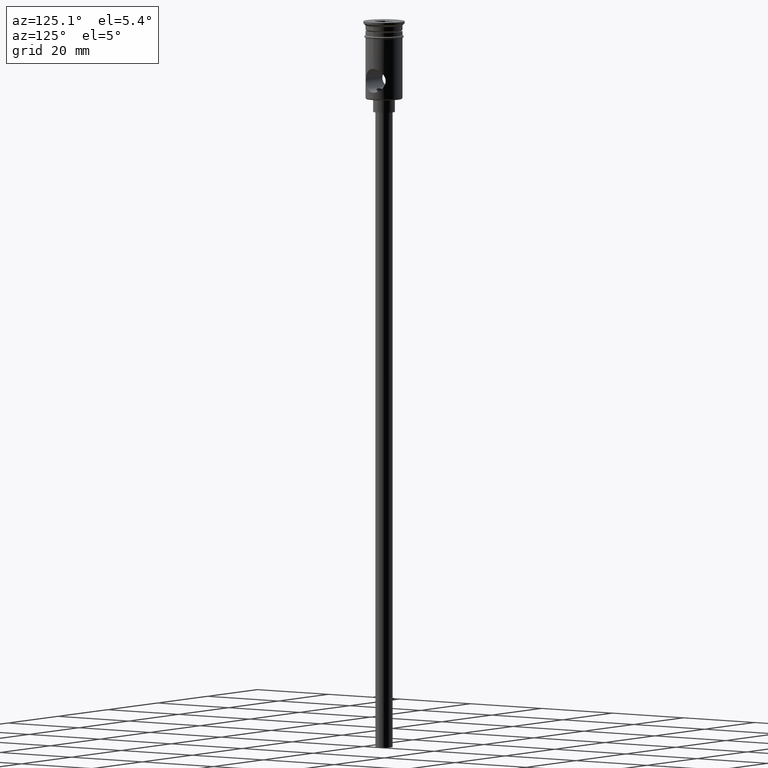
[diagram: clean part render]
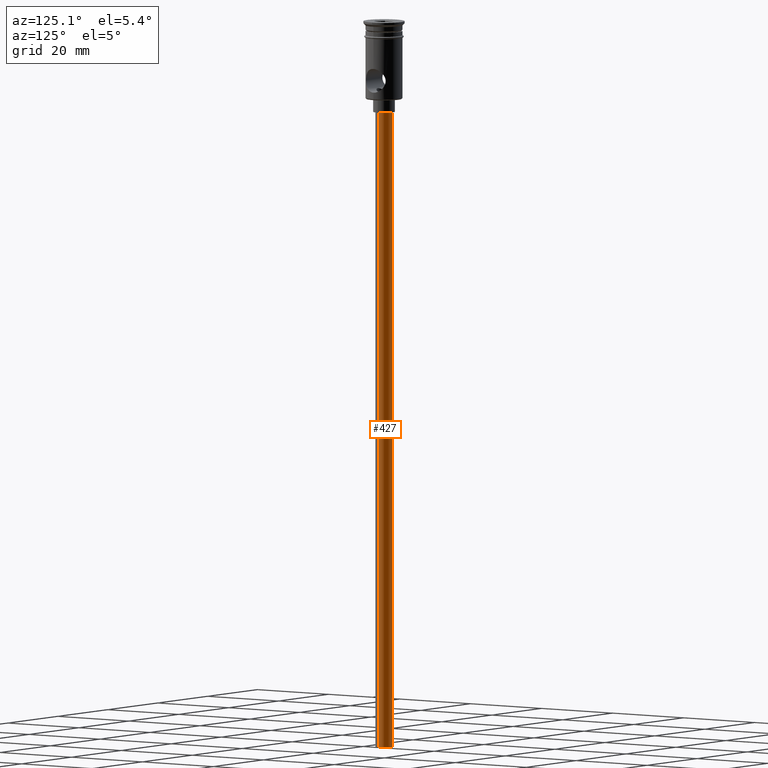
[diagram: same view with one face highlighted and labeled with its STEP entity id]
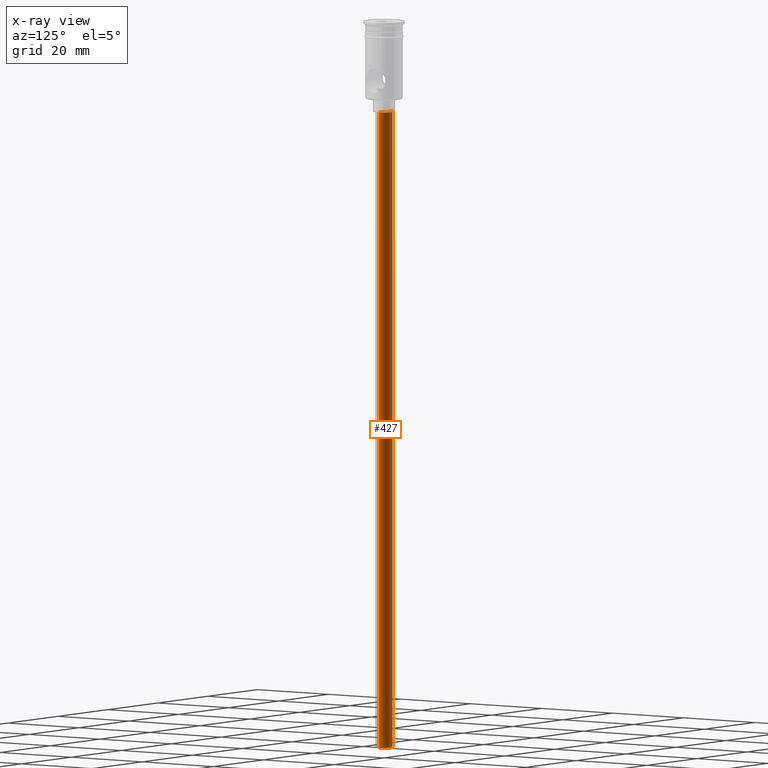
[diagram: x-ray of the same camera — body ghosted, the highlighted face saturated]
A machine part, auxiliary view. The second image highlights one B-rep face of the part: STEP entity #427.
The next image is the same camera in x-ray: the body ghosted, the highlighted face saturated — about 0% of this face is hidden behind the body in this view.
In plain terms, the highlighted cylindrical surface (edge-blend (fillet) strip) has radius 2 mm, axis along (-0, -0, 1).
Its self-contained STEP definition (entity closure, byte-faithful):
#16 = LINE ( 'NONE', #695, #140 ) ;
#68 = DIRECTION ( 'NONE',  ( 0.000000000000000000, 0.000000000000000000, -1.000000000000000000 ) ) ;
#109 = CIRCLE ( 'NONE', #688, 2.000000000000000000 ) ;
#110 = LINE ( 'NONE', #991, #678 ) ;
#140 = VECTOR ( 'NONE', #907, 1000.000000000000000 ) ;
#164 = DIRECTION ( 'NONE',  ( 1.000000000000000000, 0.000000000000000000, 0.000000000000000000 ) ) ;
#228 = DIRECTION ( 'NONE',  ( -0.000000000000000000, -0.000000000000000000, 1.000000000000000000 ) ) ;
#247 = FACE_OUTER_BOUND ( 'NONE', #398, .T. ) ;
#270 = DIRECTION ( 'NONE',  ( -0.000000000000000000, -0.000000000000000000, 1.000000000000000000 ) ) ;
#295 = ORIENTED_EDGE ( 'NONE', *, *, #610, .T. ) ;
#372 = CYLINDRICAL_SURFACE ( 'NONE', #1006, 2.000000000000000000 ) ;
#398 = EDGE_LOOP ( 'NONE', ( #804, #295, #778, #1431 ) ) ;
#427 = ADVANCED_FACE ( 'NONE', ( #247 ), #372, .T. ) ;
#464 = EDGE_CURVE ( 'NONE', #1121, #605, #492, .T. ) ;
#492 = CIRCLE ( 'NONE', #1297, 2.000000000000000000 ) ;
#501 = DIRECTION ( 'NONE',  ( -1.000000000000000000, 0.000000000000000000, 0.000000000000000000 ) ) ;
#603 = CARTESIAN_POINT ( 'NONE',  ( -2.000000000000000000, 2.449293598294706414E-16, -20.99999999999999645 ) ) ;
#605 = VERTEX_POINT ( 'NONE', #1220 ) ;
#610 = EDGE_CURVE ( 'NONE', #1121, #1243, #110, .T. ) ;
#629 = CARTESIAN_POINT ( 'NONE',  ( 0.000000000000000000, 0.000000000000000000, -20.99999999999999645 ) ) ;
#678 = VECTOR ( 'NONE', #228, 1000.000000000000000 ) ;
#688 = AXIS2_PLACEMENT_3D ( 'NONE', #629, #1054, #501 ) ;
#695 = CARTESIAN_POINT ( 'NONE',  ( 2.000000000000000000, 0.000000000000000000, -167.9999999999999716 ) ) ;
#709 = CARTESIAN_POINT ( 'NONE',  ( 2.000000000000000000, 0.000000000000000000, -20.99999999999999645 ) ) ;
#757 = CARTESIAN_POINT ( 'NONE',  ( -2.000000000000000000, 2.449293598294706414E-16, -167.9999999999999716 ) ) ;
#764 = VERTEX_POINT ( 'NONE', #709 ) ;
#771 = EDGE_CURVE ( 'NONE', #605, #764, #16, .T. ) ;
#778 = ORIENTED_EDGE ( 'NONE', *, *, #967, .T. ) ;
#802 = CARTESIAN_POINT ( 'NONE',  ( 0.000000000000000000, 0.000000000000000000, -167.9999999999999716 ) ) ;
#804 = ORIENTED_EDGE ( 'NONE', *, *, #464, .F. ) ;
#859 = DIRECTION ( 'NONE',  ( -1.000000000000000000, 0.000000000000000000, 0.000000000000000000 ) ) ;
#907 = DIRECTION ( 'NONE',  ( -0.000000000000000000, -0.000000000000000000, 1.000000000000000000 ) ) ;
#964 = CARTESIAN_POINT ( 'NONE',  ( 0.000000000000000000, 0.000000000000000000, -167.9999999999999716 ) ) ;
#967 = EDGE_CURVE ( 'NONE', #1243, #764, #109, .T. ) ;
#991 = CARTESIAN_POINT ( 'NONE',  ( -2.000000000000000000, 2.449293598294706414E-16, -167.9999999999999716 ) ) ;
#1006 = AXIS2_PLACEMENT_3D ( 'NONE', #802, #270, #164 ) ;
#1054 = DIRECTION ( 'NONE',  ( 0.000000000000000000, 0.000000000000000000, -1.000000000000000000 ) ) ;
#1121 = VERTEX_POINT ( 'NONE', #757 ) ;
#1220 = CARTESIAN_POINT ( 'NONE',  ( 2.000000000000000000, 0.000000000000000000, -167.9999999999999716 ) ) ;
#1243 = VERTEX_POINT ( 'NONE', #603 ) ;
#1297 = AXIS2_PLACEMENT_3D ( 'NONE', #964, #68, #859 ) ;
#1431 = ORIENTED_EDGE ( 'NONE', *, *, #771, .F. ) ;